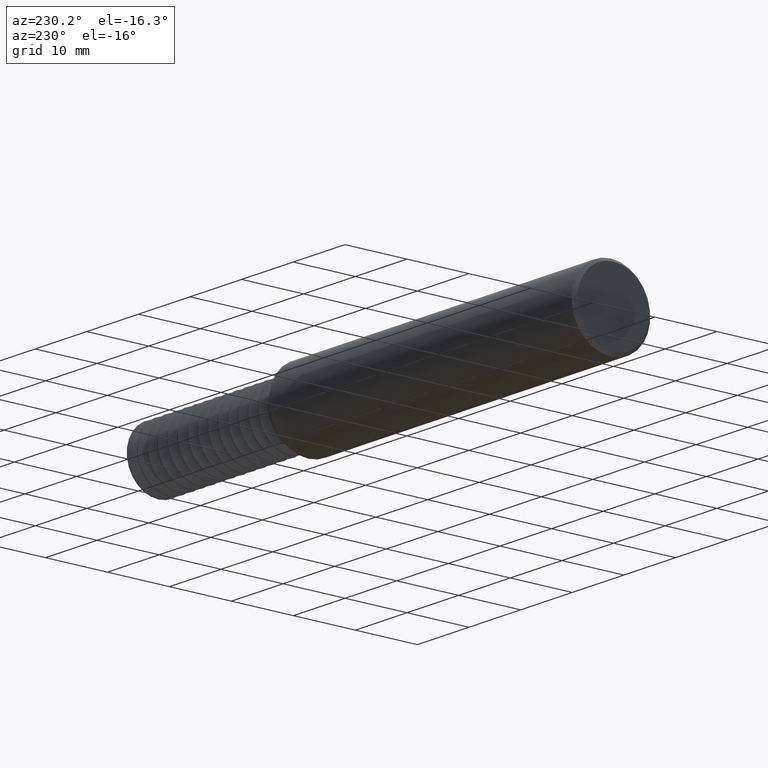
[diagram: clean part render]
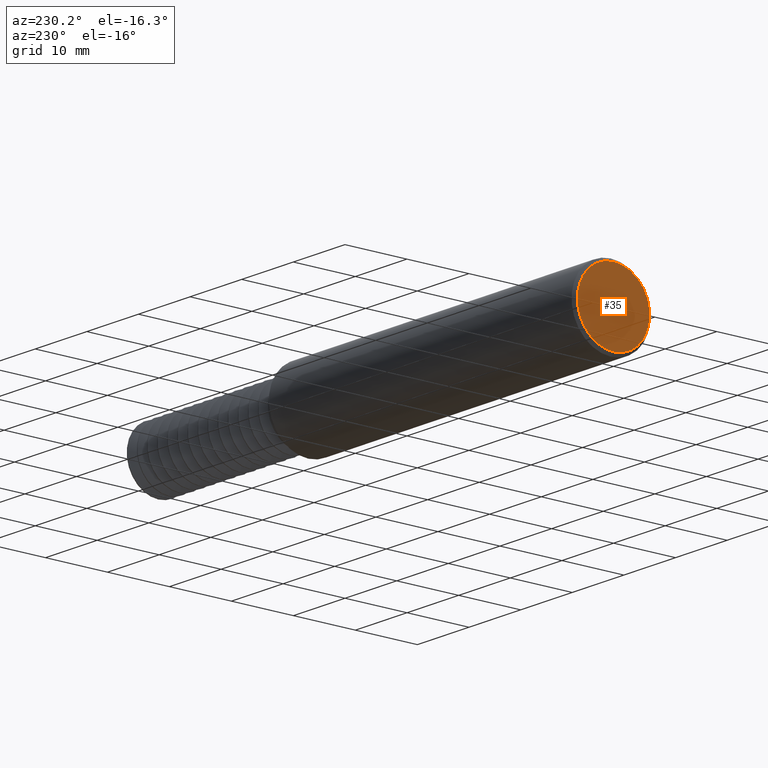
[diagram: same view with one face highlighted and labeled with its STEP entity id]
A machine part, auxiliary view. The second image highlights one B-rep face of the part: STEP entity #35.
In plain terms, the highlighted planar face has unit normal (1, 0, 0).
Its self-contained STEP definition (entity closure, byte-faithful):
#35 = ADVANCED_FACE ( 'NONE', ( #1350 ), #1320, .F. ) ;
#310 = DIRECTION ( 'NONE',  ( 1.000000000000000000, 0.000000000000000000, 0.000000000000000000 ) ) ;
#366 = EDGE_LOOP ( 'NONE', ( #1334, #2231 ) ) ;
#536 = CARTESIAN_POINT ( 'NONE',  ( 0.000000000000000000, 0.000000000000000000, 0.000000000000000000 ) ) ;
#854 = EDGE_CURVE ( 'NONE', #1154, #1487, #1123, .T. ) ;
#926 = EDGE_CURVE ( 'NONE', #1487, #1154, #1747, .T. ) ;
#1026 = CARTESIAN_POINT ( 'NONE',  ( 0.000000000000000000, 0.000000000000000000, -0.2298500000000008314 ) ) ;
#1123 = CIRCLE ( 'NONE', #2777, 0.2298500000000008314 ) ;
#1154 = VERTEX_POINT ( 'NONE', #2298 ) ;
#1320 = PLANE ( 'NONE',  #2238 ) ;
#1334 = ORIENTED_EDGE ( 'NONE', *, *, #926, .T. ) ;
#1350 = FACE_OUTER_BOUND ( 'NONE', #366, .T. ) ;
#1420 = DIRECTION ( 'NONE',  ( 0.000000000000000000, 0.000000000000000000, -1.000000000000000000 ) ) ;
#1487 = VERTEX_POINT ( 'NONE', #1026 ) ;
#1537 = DIRECTION ( 'NONE',  ( -1.000000000000000000, -0.000000000000000000, -0.000000000000000000 ) ) ;
#1747 = CIRCLE ( 'NONE', #2470, 0.2298500000000008314 ) ;
#2115 = DIRECTION ( 'NONE',  ( 0.000000000000000000, 0.000000000000000000, -1.000000000000000000 ) ) ;
#2169 = DIRECTION ( 'NONE',  ( 0.000000000000000000, 0.000000000000000000, -1.000000000000000000 ) ) ;
#2231 = ORIENTED_EDGE ( 'NONE', *, *, #854, .T. ) ;
#2238 = AXIS2_PLACEMENT_3D ( 'NONE', #2338, #310, #2115 ) ;
#2298 = CARTESIAN_POINT ( 'NONE',  ( 0.000000000000000000, 2.937315347754931811E-17, 0.2298500000000008314 ) ) ;
#2338 = CARTESIAN_POINT ( 'NONE',  ( 0.000000000000000000, 0.000000000000000000, 0.000000000000000000 ) ) ;
#2470 = AXIS2_PLACEMENT_3D ( 'NONE', #3135, #2668, #2169 ) ;
#2668 = DIRECTION ( 'NONE',  ( -1.000000000000000000, -0.000000000000000000, -0.000000000000000000 ) ) ;
#2777 = AXIS2_PLACEMENT_3D ( 'NONE', #536, #1537, #1420 ) ;
#3135 = CARTESIAN_POINT ( 'NONE',  ( 0.000000000000000000, 0.000000000000000000, 0.000000000000000000 ) ) ;